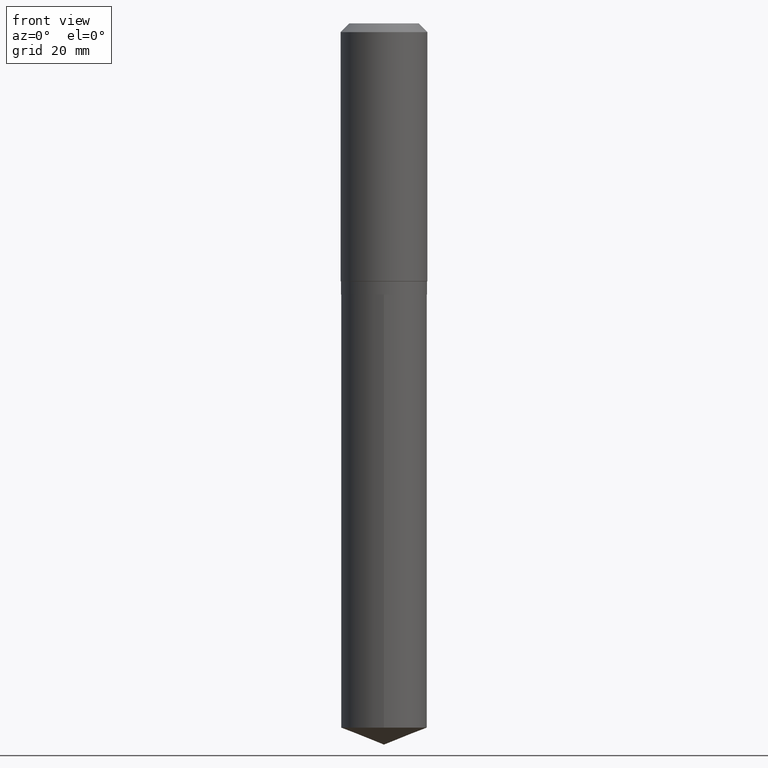
[diagram: clean part render]
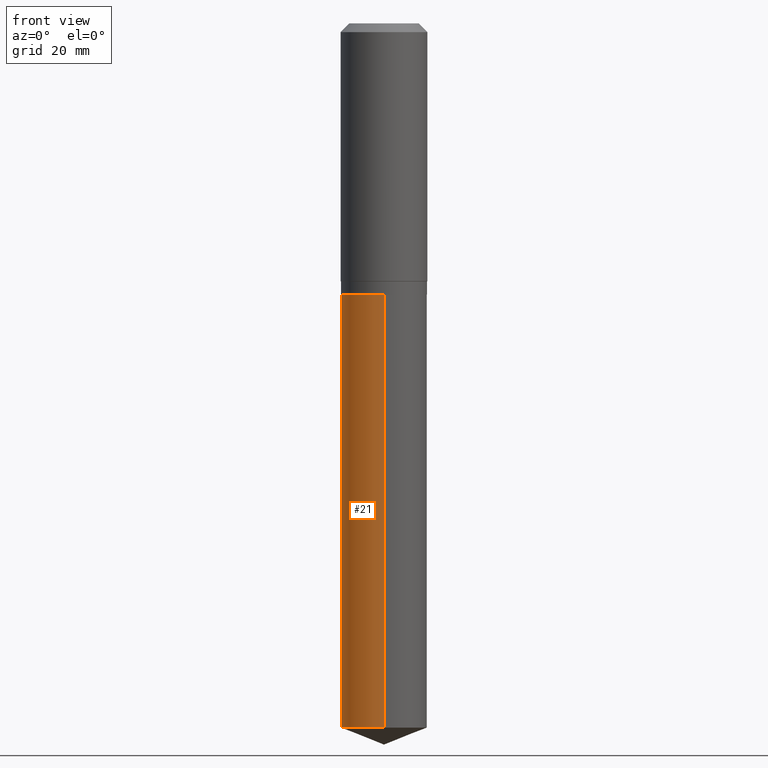
[diagram: same view with one face highlighted and labeled with its STEP entity id]
A machine part, front view. The second image highlights one B-rep face of the part: STEP entity #21.
In plain terms, the highlighted cylindrical surface (partial cylindrical patch) has radius 7.9375 mm, axis along (-0, 0, 1).
Its self-contained STEP definition (entity closure, byte-faithful):
#2 = CIRCLE ( 'NONE', #241, 0.3125000000000000000 ) ;
#20 = CYLINDRICAL_SURFACE ( 'NONE', #101, 0.3125000000000000000 ) ;
#21 = ADVANCED_FACE ( 'NONE', ( #28 ), #20, .T. ) ;
#25 = DIRECTION ( 'NONE',  ( -6.982962677686265133E-15, -1.000000000000000000, 3.496765431890256920E-15 ) ) ;
#28 = FACE_OUTER_BOUND ( 'NONE', #134, .T. ) ;
#31 = DIRECTION ( 'NONE',  ( -6.982962677686265133E-15, -1.000000000000000000, 3.496765431890256920E-15 ) ) ;
#54 = VECTOR ( 'NONE', #289, 39.37007874015748143 ) ;
#73 = VERTEX_POINT ( 'NONE', #106 ) ;
#91 = CARTESIAN_POINT ( 'NONE',  ( 2.220446049250360807E-15, 0.3124999999999931166, -1.968300000000000383 ) ) ;
#101 = AXIS2_PLACEMENT_3D ( 'NONE', #253, #173, #182 ) ;
#104 = ORIENTED_EDGE ( 'NONE', *, *, #262, .T. ) ;
#106 = CARTESIAN_POINT ( 'NONE',  ( 2.220446049250438510E-15, 0.3124999999999822364, -5.112902976370331309 ) ) ;
#112 = EDGE_CURVE ( 'NONE', #442, #364, #2, .T. ) ;
#134 = EDGE_LOOP ( 'NONE', ( #470, #104, #167, #205 ) ) ;
#145 = CARTESIAN_POINT ( 'NONE',  ( 1.250348880758840458E-28, -1.785154221881686105E-14, -5.112902976370330421 ) ) ;
#167 = ORIENTED_EDGE ( 'NONE', *, *, #197, .T. ) ;
#173 = DIRECTION ( 'NONE',  ( -2.445482820616831825E-29, 3.491461269379306004E-15, 1.000000000000000000 ) ) ;
#182 = DIRECTION ( 'NONE',  ( -6.982962677686265133E-15, -1.000000000000000000, 3.496765431890256920E-15 ) ) ;
#197 = EDGE_CURVE ( 'NONE', #403, #364, #254, .T. ) ;
#205 = ORIENTED_EDGE ( 'NONE', *, *, #112, .F. ) ;
#209 = DIRECTION ( 'NONE',  ( -2.445482820616831825E-29, 3.491461269379306004E-15, 1.000000000000000000 ) ) ;
#232 = CARTESIAN_POINT ( 'NONE',  ( -2.182175836776833707E-15, -0.3125000000000178191, -5.112902976370329533 ) ) ;
#241 = AXIS2_PLACEMENT_3D ( 'NONE', #410, #263, #31 ) ;
#253 = CARTESIAN_POINT ( 'NONE',  ( 4.813416251214202584E-29, -6.872282719244960739E-15, -1.968299999999999272 ) ) ;
#254 = LINE ( 'NONE', #489, #54 ) ;
#261 = CIRCLE ( 'NONE', #490, 0.3125000000000000000 ) ;
#262 = EDGE_CURVE ( 'NONE', #73, #403, #261, .T. ) ;
#263 = DIRECTION ( 'NONE',  ( -2.445482820616831825E-29, 3.491461269379306004E-15, 1.000000000000000000 ) ) ;
#268 = CARTESIAN_POINT ( 'NONE',  ( 2.220446049250438510E-15, 0.3124999999999931166, -1.968300000000000383 ) ) ;
#271 = CARTESIAN_POINT ( 'NONE',  ( -2.182175836776910227E-15, -0.3125000000000069389, -1.968299999999998162 ) ) ;
#282 = LINE ( 'NONE', #91, #386 ) ;
#289 = DIRECTION ( 'NONE',  ( -2.445482820616831825E-29, 3.491461269379306004E-15, 1.000000000000000000 ) ) ;
#364 = VERTEX_POINT ( 'NONE', #271 ) ;
#386 = VECTOR ( 'NONE', #209, 39.37007874015748143 ) ;
#401 = DIRECTION ( 'NONE',  ( -2.445482820616831825E-29, 3.491461269379306004E-15, 1.000000000000000000 ) ) ;
#403 = VERTEX_POINT ( 'NONE', #232 ) ;
#410 = CARTESIAN_POINT ( 'NONE',  ( 4.813416251214202584E-29, -6.872282719244960739E-15, -1.968299999999999272 ) ) ;
#442 = VERTEX_POINT ( 'NONE', #268 ) ;
#470 = ORIENTED_EDGE ( 'NONE', *, *, #478, .F. ) ;
#478 = EDGE_CURVE ( 'NONE', #73, #442, #282, .T. ) ;
#489 = CARTESIAN_POINT ( 'NONE',  ( -2.182175836776910227E-15, -0.3125000000000069389, -1.968299999999998162 ) ) ;
#490 = AXIS2_PLACEMENT_3D ( 'NONE', #145, #401, #25 ) ;